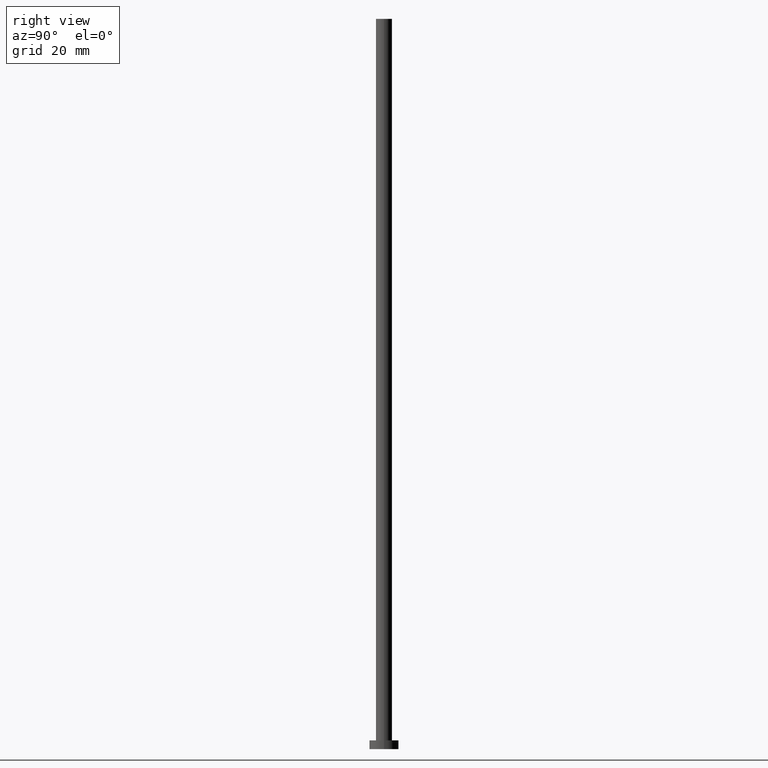
[diagram: clean part render]
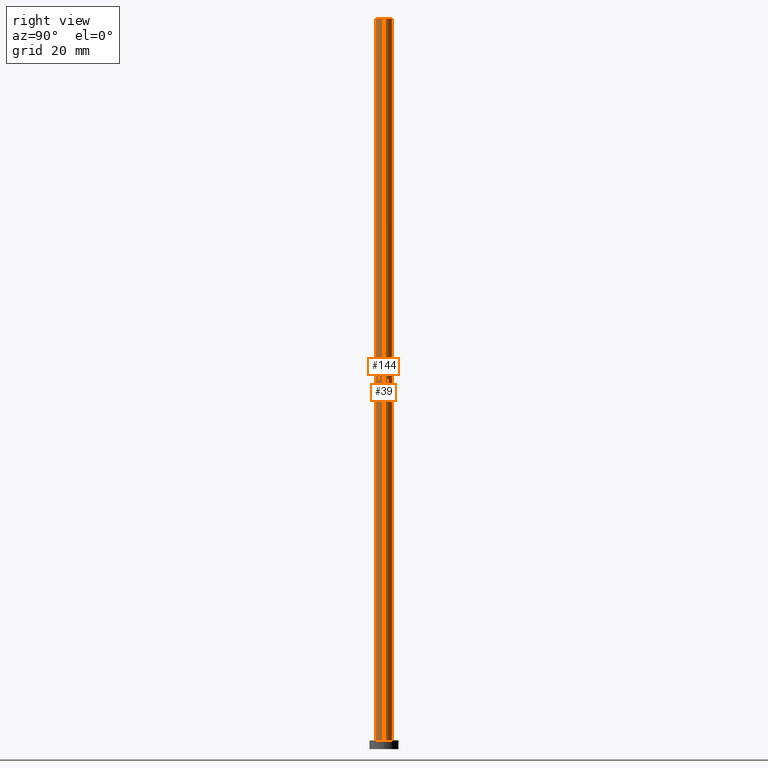
[diagram: same view with one multi-face feature highlighted, each face labeled with its STEP entity id]
A machine part, right view. The highlighted faces form ONE feature: a constant-radius fillet chain: 2 tangent blend faces with common blend radius 2.75 mm. The faces share edges in the B-rep.
Their STEP definitions:
[1] entity #39 (Cylinder):
#3 = DIRECTION ( 'NONE',  ( -0.000000000000000000, -0.000000000000000000, -1.000000000000000000 ) ) ;
#4 = CARTESIAN_POINT ( 'NONE',  ( 0.000000000000000000, 0.000000000000000000, 250.0000000000000000 ) ) ;
#8 = ORIENTED_EDGE ( 'NONE', *, *, #199, .T. ) ;
#11 = CARTESIAN_POINT ( 'NONE',  ( 2.750000000000000000, 3.367778697655221012E-16, 3.000000000000000000 ) ) ;
#16 = CIRCLE ( 'NONE', #56, 2.750000000000000000 ) ;
#20 = CARTESIAN_POINT ( 'NONE',  ( -2.750000000000000000, 0.000000000000000000, 250.0000000000000000 ) ) ;
#24 = DIRECTION ( 'NONE',  ( -0.000000000000000000, -0.000000000000000000, -1.000000000000000000 ) ) ;
#39 = ADVANCED_FACE ( 'NONE', ( #178 ), #47, .T. ) ;
#43 = VERTEX_POINT ( 'NONE', #64 ) ;
#46 = VECTOR ( 'NONE', #58, 1000.000000000000000 ) ;
#47 = CYLINDRICAL_SURFACE ( 'NONE', #97, 2.750000000000000000 ) ;
#48 = EDGE_LOOP ( 'NONE', ( #123, #200, #8, #238 ) ) ;
#56 = AXIS2_PLACEMENT_3D ( 'NONE', #191, #115, #102 ) ;
#58 = DIRECTION ( 'NONE',  ( -0.000000000000000000, -0.000000000000000000, -1.000000000000000000 ) ) ;
#62 = LINE ( 'NONE', #121, #46 ) ;
#64 = CARTESIAN_POINT ( 'NONE',  ( 2.750000000000000000, 3.367778697655221012E-16, 250.0000000000000000 ) ) ;
#76 = CARTESIAN_POINT ( 'NONE',  ( 0.000000000000000000, 0.000000000000000000, 250.0000000000000000 ) ) ;
#83 = DIRECTION ( 'NONE',  ( -1.000000000000000000, 0.000000000000000000, 0.000000000000000000 ) ) ;
#84 = EDGE_CURVE ( 'NONE', #43, #142, #175, .T. ) ;
#88 = VECTOR ( 'NONE', #3, 1000.000000000000000 ) ;
#93 = CARTESIAN_POINT ( 'NONE',  ( -2.750000000000000000, 0.000000000000000000, 3.000000000000000000 ) ) ;
#97 = AXIS2_PLACEMENT_3D ( 'NONE', #4, #24, #83 ) ;
#102 = DIRECTION ( 'NONE',  ( 1.000000000000000000, 0.000000000000000000, 0.000000000000000000 ) ) ;
#115 = DIRECTION ( 'NONE',  ( 0.000000000000000000, 0.000000000000000000, 1.000000000000000000 ) ) ;
#121 = CARTESIAN_POINT ( 'NONE',  ( -2.750000000000000000, 0.000000000000000000, 250.0000000000000000 ) ) ;
#122 = VERTEX_POINT ( 'NONE', #11 ) ;
#123 = ORIENTED_EDGE ( 'NONE', *, *, #84, .F. ) ;
#125 = VERTEX_POINT ( 'NONE', #93 ) ;
#142 = VERTEX_POINT ( 'NONE', #20 ) ;
#154 = LINE ( 'NONE', #209, #88 ) ;
#157 = EDGE_CURVE ( 'NONE', #43, #122, #154, .T. ) ;
#175 = CIRCLE ( 'NONE', #220, 2.750000000000000000 ) ;
#178 = FACE_OUTER_BOUND ( 'NONE', #48, .T. ) ;
#180 = EDGE_CURVE ( 'NONE', #142, #125, #62, .T. ) ;
#186 = DIRECTION ( 'NONE',  ( 0.000000000000000000, 0.000000000000000000, 1.000000000000000000 ) ) ;
#187 = DIRECTION ( 'NONE',  ( 1.000000000000000000, 0.000000000000000000, 0.000000000000000000 ) ) ;
#191 = CARTESIAN_POINT ( 'NONE',  ( 0.000000000000000000, 0.000000000000000000, 3.000000000000000000 ) ) ;
#199 = EDGE_CURVE ( 'NONE', #122, #125, #16, .T. ) ;
#200 = ORIENTED_EDGE ( 'NONE', *, *, #157, .T. ) ;
#209 = CARTESIAN_POINT ( 'NONE',  ( 2.750000000000000000, 3.367778697655221012E-16, 250.0000000000000000 ) ) ;
#220 = AXIS2_PLACEMENT_3D ( 'NONE', #76, #186, #187 ) ;
#238 = ORIENTED_EDGE ( 'NONE', *, *, #180, .F. ) ;
[2] entity #144 (Cylinder):
#3 = DIRECTION ( 'NONE',  ( -0.000000000000000000, -0.000000000000000000, -1.000000000000000000 ) ) ;
#11 = CARTESIAN_POINT ( 'NONE',  ( 2.750000000000000000, 3.367778697655221012E-16, 3.000000000000000000 ) ) ;
#13 = AXIS2_PLACEMENT_3D ( 'NONE', #246, #145, #184 ) ;
#20 = CARTESIAN_POINT ( 'NONE',  ( -2.750000000000000000, 0.000000000000000000, 250.0000000000000000 ) ) ;
#23 = ORIENTED_EDGE ( 'NONE', *, *, #130, .T. ) ;
#43 = VERTEX_POINT ( 'NONE', #64 ) ;
#46 = VECTOR ( 'NONE', #58, 1000.000000000000000 ) ;
#57 = CYLINDRICAL_SURFACE ( 'NONE', #206, 2.750000000000000000 ) ;
#58 = DIRECTION ( 'NONE',  ( -0.000000000000000000, -0.000000000000000000, -1.000000000000000000 ) ) ;
#61 = FACE_OUTER_BOUND ( 'NONE', #161, .T. ) ;
#62 = LINE ( 'NONE', #121, #46 ) ;
#64 = CARTESIAN_POINT ( 'NONE',  ( 2.750000000000000000, 3.367778697655221012E-16, 250.0000000000000000 ) ) ;
#79 = DIRECTION ( 'NONE',  ( 0.000000000000000000, 0.000000000000000000, 1.000000000000000000 ) ) ;
#87 = ORIENTED_EDGE ( 'NONE', *, *, #180, .T. ) ;
#88 = VECTOR ( 'NONE', #3, 1000.000000000000000 ) ;
#93 = CARTESIAN_POINT ( 'NONE',  ( -2.750000000000000000, 0.000000000000000000, 3.000000000000000000 ) ) ;
#101 = AXIS2_PLACEMENT_3D ( 'NONE', #255, #79, #228 ) ;
#121 = CARTESIAN_POINT ( 'NONE',  ( -2.750000000000000000, 0.000000000000000000, 250.0000000000000000 ) ) ;
#122 = VERTEX_POINT ( 'NONE', #11 ) ;
#125 = VERTEX_POINT ( 'NONE', #93 ) ;
#130 = EDGE_CURVE ( 'NONE', #125, #122, #192, .T. ) ;
#140 = ORIENTED_EDGE ( 'NONE', *, *, #231, .F. ) ;
#142 = VERTEX_POINT ( 'NONE', #20 ) ;
#144 = ADVANCED_FACE ( 'NONE', ( #61 ), #57, .T. ) ;
#145 = DIRECTION ( 'NONE',  ( 0.000000000000000000, 0.000000000000000000, 1.000000000000000000 ) ) ;
#154 = LINE ( 'NONE', #209, #88 ) ;
#156 = DIRECTION ( 'NONE',  ( -1.000000000000000000, 0.000000000000000000, 0.000000000000000000 ) ) ;
#157 = EDGE_CURVE ( 'NONE', #43, #122, #154, .T. ) ;
#161 = EDGE_LOOP ( 'NONE', ( #237, #140, #87, #23 ) ) ;
#174 = DIRECTION ( 'NONE',  ( -0.000000000000000000, -0.000000000000000000, -1.000000000000000000 ) ) ;
#180 = EDGE_CURVE ( 'NONE', #142, #125, #62, .T. ) ;
#184 = DIRECTION ( 'NONE',  ( 1.000000000000000000, 0.000000000000000000, 0.000000000000000000 ) ) ;
#190 = CARTESIAN_POINT ( 'NONE',  ( 0.000000000000000000, 0.000000000000000000, 250.0000000000000000 ) ) ;
#192 = CIRCLE ( 'NONE', #13, 2.750000000000000000 ) ;
#206 = AXIS2_PLACEMENT_3D ( 'NONE', #190, #174, #156 ) ;
#209 = CARTESIAN_POINT ( 'NONE',  ( 2.750000000000000000, 3.367778697655221012E-16, 250.0000000000000000 ) ) ;
#228 = DIRECTION ( 'NONE',  ( 1.000000000000000000, 0.000000000000000000, 0.000000000000000000 ) ) ;
#231 = EDGE_CURVE ( 'NONE', #142, #43, #249, .T. ) ;
#237 = ORIENTED_EDGE ( 'NONE', *, *, #157, .F. ) ;
#246 = CARTESIAN_POINT ( 'NONE',  ( 0.000000000000000000, 0.000000000000000000, 3.000000000000000000 ) ) ;
#249 = CIRCLE ( 'NONE', #101, 2.750000000000000000 ) ;
#255 = CARTESIAN_POINT ( 'NONE',  ( 0.000000000000000000, 0.000000000000000000, 250.0000000000000000 ) ) ;